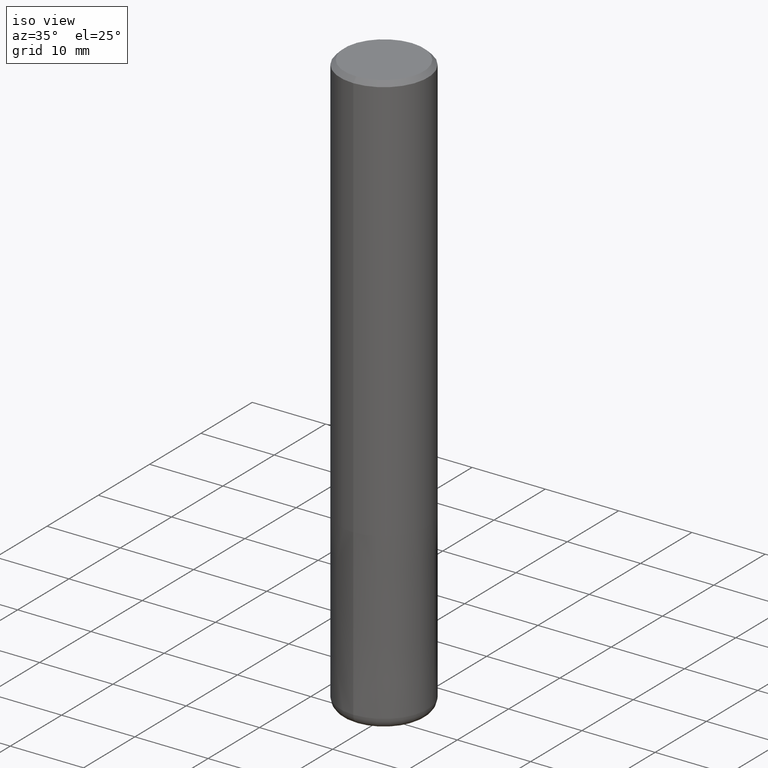
[diagram: clean part render]
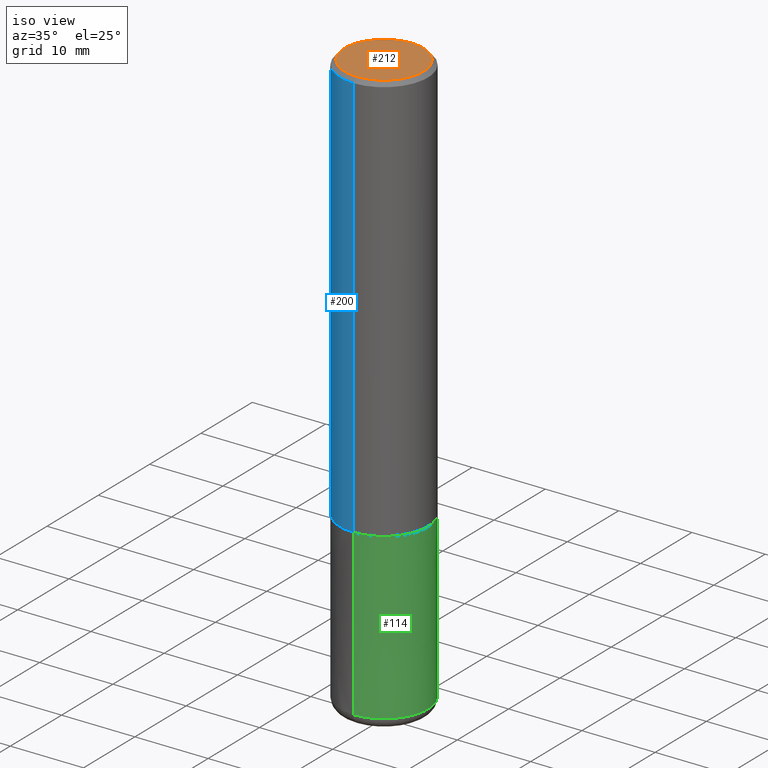
[diagram: same view with three faces highlighted in distinct colors, each labeled with its STEP entity id]
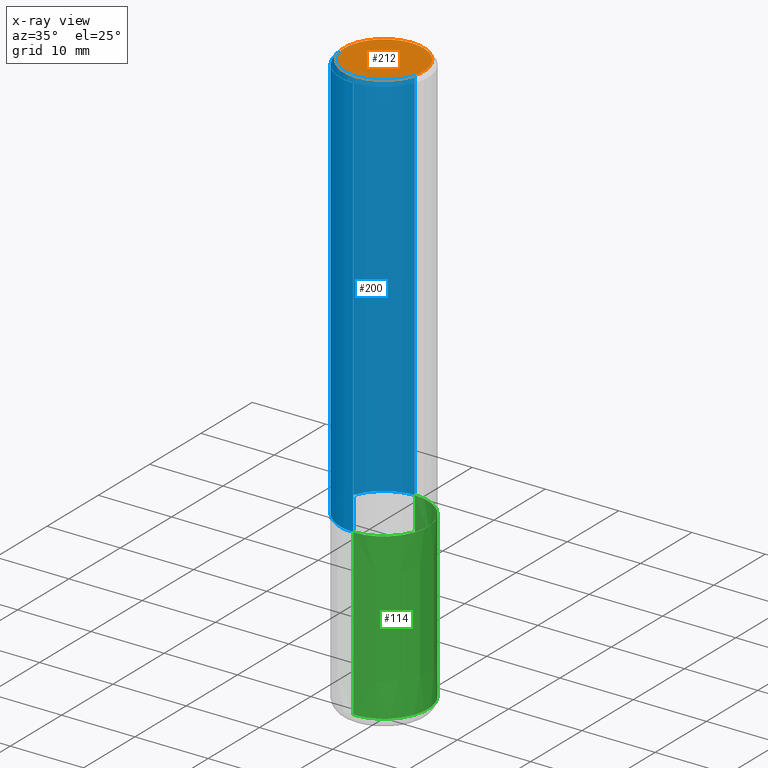
[diagram: x-ray of the same camera — body ghosted, the three highlighted faces saturated]
A machine part, iso view with three faces highlighted in distinct colors.
The next image is the same camera in x-ray (body ghosted, the three faces saturated) — at least one of them is partly hidden behind the body in this view.
Their STEP definitions:

[orange] entity #212 — the highlighted planar face has unit normal (-0, 0, 1).
#136=EDGE_CURVE('',#182,#220,#299,.T.);
#144=EDGE_CURVE('',#220,#182,#307,.T.);
#182=VERTEX_POINT('',#350);
#212=ADVANCED_FACE('',(#385),#386,.T.);
#220=VERTEX_POINT('',#396);
#299=CIRCLE('',#484,5.4);
#307=CIRCLE('',#493,5.4);
#350=CARTESIAN_POINT('',(6.61287431064084E-016,-5.4,0.0));
#385=FACE_OUTER_BOUND('',#592,.T.);
#386=PLANE('',#593);
#396=CARTESIAN_POINT('',(0.0,5.4,0.0));
#484=AXIS2_PLACEMENT_3D('',#683,#684,#685);
#493=AXIS2_PLACEMENT_3D('',#686,#687,#688);
#592=EDGE_LOOP('',(#788,#789));
#593=AXIS2_PLACEMENT_3D('',#790,#791,#792);
#683=CARTESIAN_POINT('',(0.0,0.0,0.0));
#684=DIRECTION('',(0.0,0.0,-1.0));
#685=DIRECTION('',(0.0,1.0,0.0));
#686=CARTESIAN_POINT('',(0.0,0.0,0.0));
#687=DIRECTION('',(0.0,0.0,-1.0));
#688=DIRECTION('',(0.0,1.0,0.0));
#788=ORIENTED_EDGE('',*,*,#144,.F.);
#789=ORIENTED_EDGE('',*,*,#136,.F.);
#790=CARTESIAN_POINT('',(0.0,2.7,0.0));
#791=DIRECTION('',(-0.0,0.0,1.0));
#792=DIRECTION('',(0.0,-1.0,0.0));

[blue] entity #200 — the highlighted cylindrical surface (partial cylindrical patch) has radius 6 mm, axis along (-0, -0, 1).
#138=VERTEX_POINT('',#301);
#160=EDGE_CURVE('',#244,#138,#324,.T.);
#162=EDGE_CURVE('',#202,#208,#326,.T.);
#198=EDGE_CURVE('',#208,#244,#369,.T.);
#200=ADVANCED_FACE('',(#371),#372,.T.);
#202=VERTEX_POINT('',#374);
#208=VERTEX_POINT('',#381);
#210=EDGE_CURVE('',#202,#138,#383,.T.);
#244=VERTEX_POINT('',#425);
#301=CARTESIAN_POINT('',(0.0,6.0,-56.0));
#324=LINE('',#517,#518);
#326=LINE('',#521,#522);
#369=CIRCLE('',#573,6.0);
#371=FACE_OUTER_BOUND('',#575,.T.);
#372=CYLINDRICAL_SURFACE('',#576,6.0);
#374=CARTESIAN_POINT('',(7.34763812293426E-016,-6.0,-56.0));
#381=CARTESIAN_POINT('',(7.34763812293426E-016,-6.0,-0.600000000000001));
#383=CIRCLE('',#590,6.0);
#425=CARTESIAN_POINT('',(0.0,6.0,-0.600000000000001));
#517=CARTESIAN_POINT('',(-7.34763812293426E-016,6.0,-28.3));
#518=VECTOR('',#710,1.0);
#521=CARTESIAN_POINT('',(7.34763812293426E-016,-6.0,-28.3));
#522=VECTOR('',#711,1.0);
#573=AXIS2_PLACEMENT_3D('',#764,#765,#766);
#575=EDGE_LOOP('',(#768,#769,#770,#771));
#576=AXIS2_PLACEMENT_3D('',#772,#773,#774);
#590=AXIS2_PLACEMENT_3D('',#784,#785,#786);
#710=DIRECTION('',(0.0,0.0,-1.0));
#711=DIRECTION('',(-0.0,-0.0,1.0));
#764=CARTESIAN_POINT('',(0.0,0.0,-0.600000000000001));
#765=DIRECTION('',(0.0,0.0,-1.0));
#766=DIRECTION('',(0.0,1.0,0.0));
#768=ORIENTED_EDGE('',*,*,#160,.T.);
#769=ORIENTED_EDGE('',*,*,#210,.F.);
#770=ORIENTED_EDGE('',*,*,#162,.T.);
#771=ORIENTED_EDGE('',*,*,#198,.T.);
#772=CARTESIAN_POINT('',(0.0,0.0,-28.3));
#773=DIRECTION('',(-0.0,-0.0,1.0));
#774=DIRECTION('',(0.0,1.0,0.0));
#784=CARTESIAN_POINT('',(0.0,0.0,-56.0));
#785=DIRECTION('',(0.0,0.0,-1.0));
#786=DIRECTION('',(0.0,1.0,0.0));

[green] entity #114 — the highlighted conical surface has half-angle 0 deg.
#114=ADVANCED_FACE('',(#275),#276,.T.);
#118=EDGE_CURVE('',#186,#192,#280,.T.);
#122=EDGE_CURVE('',#158,#192,#284,.T.);
#128=EDGE_CURVE('',#188,#186,#291,.T.);
#150=EDGE_CURVE('',#158,#188,#314,.T.);
#158=VERTEX_POINT('',#322);
#186=VERTEX_POINT('',#354);
#188=VERTEX_POINT('',#356);
#192=VERTEX_POINT('',#360);
#275=FACE_OUTER_BOUND('',#454,.T.);
#276=CONICAL_SURFACE('',#455,5.99995,4.44444444440482E-006);
#280=LINE('',#460,#461);
#284=CIRCLE('',#467,5.9999);
#291=CIRCLE('',#475,6.0);
#314=LINE('',#502,#503);
#322=CARTESIAN_POINT('',(0.0,5.9999,-56.0));
#354=CARTESIAN_POINT('',(7.34763812293426E-016,-6.0,-78.5));
#356=CARTESIAN_POINT('',(0.0,6.0,-78.5));
#360=CARTESIAN_POINT('',(7.34751566229888E-016,-5.9999,-56.0));
#454=EDGE_LOOP('',(#654,#655,#656,#657));
#455=AXIS2_PLACEMENT_3D('',#658,#659,#660);
#460=CARTESIAN_POINT('',(7.34757689261657E-016,-5.99995,-67.25));
#461=VECTOR('',#661,1.0);
#467=AXIS2_PLACEMENT_3D('',#665,#666,#667);
#475=AXIS2_PLACEMENT_3D('',#676,#677,#678);
#502=CARTESIAN_POINT('',(-7.34757689261657E-016,5.99995,-67.25));
#503=VECTOR('',#700,1.0);
#654=ORIENTED_EDGE('',*,*,#150,.F.);
#655=ORIENTED_EDGE('',*,*,#122,.T.);
#656=ORIENTED_EDGE('',*,*,#118,.F.);
#657=ORIENTED_EDGE('',*,*,#128,.F.);
#658=CARTESIAN_POINT('',(0.0,0.0,-67.25));
#659=DIRECTION('',(0.0,-0.0,-1.0));
#660=DIRECTION('',(0.0,1.0,0.0));
#661=DIRECTION('',(-5.44269490581079E-022,4.44444444439019E-006,0.999999999990124));
#665=CARTESIAN_POINT('',(0.0,0.0,-56.0));
#666=DIRECTION('',(0.0,0.0,-1.0));
#667=DIRECTION('',(0.0,1.0,0.0));
#676=CARTESIAN_POINT('',(0.0,0.0,-78.5));
#677=DIRECTION('',(0.0,0.0,-1.0));
#678=DIRECTION('',(0.0,1.0,0.0));
#700=DIRECTION('',(-5.44269490581079E-022,4.44444444439019E-006,-0.999999999990124));